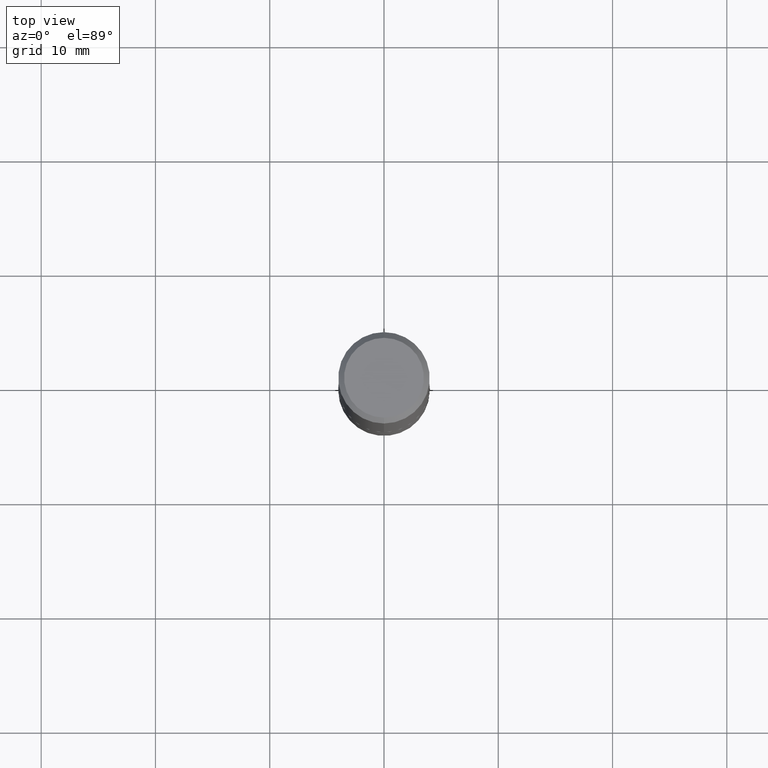
[diagram: clean part render]
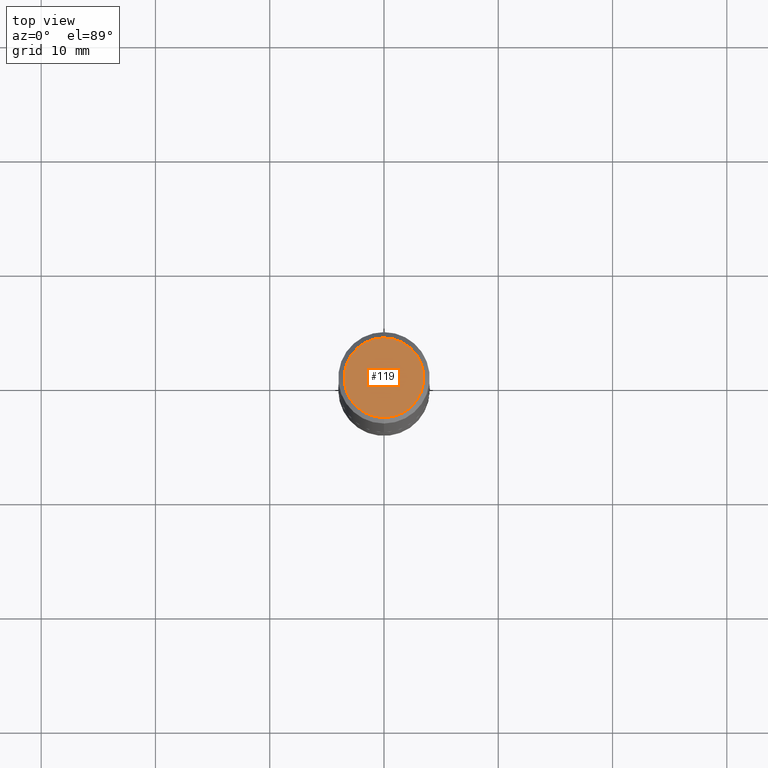
[diagram: same view with one face highlighted and labeled with its STEP entity id]
A machine part, top view. The second image highlights one B-rep face of the part: STEP entity #119.
In plain terms, the highlighted planar face has unit normal (0, -0, -1).
Its self-contained STEP definition (entity closure, byte-faithful):
#4 = CARTESIAN_POINT ( 'NONE',  ( 9.601573681818622643E-16, 0.1375000000000000944, -5.228303600724199869E-16 ) ) ;
#32 = PLANE ( 'NONE',  #73 ) ;
#39 = DIRECTION ( 'NONE',  ( -2.444792844423431679E-29, 3.492449354559260946E-15, 1.000000000000000000 ) ) ;
#40 = DIRECTION ( 'NONE',  ( -6.982962677686265922E-15, -1.000000000000000000, 3.492449354559260946E-15 ) ) ;
#73 = AXIS2_PLACEMENT_3D ( 'NONE', #4, #292, #386 ) ;
#75 = DIRECTION ( 'NONE',  ( -2.444792844423431679E-29, 3.492449354559260946E-15, 1.000000000000000000 ) ) ;
#77 = CARTESIAN_POINT ( 'NONE',  ( 2.083871686318839495E-45, -2.976864212634307973E-31, -8.523714764104235322E-17 ) ) ;
#97 = AXIS2_PLACEMENT_3D ( 'NONE', #240, #39, #316 ) ;
#100 = EDGE_CURVE ( 'NONE', #261, #314, #338, .T. ) ;
#107 = ORIENTED_EDGE ( 'NONE', *, *, #171, .T. ) ;
#119 = ADVANCED_FACE ( 'NONE', ( #418 ), #32, .F. ) ;
#154 = CARTESIAN_POINT ( 'NONE',  ( 1.029986994958724774E-15, 0.1375000000000000944, -5.654489338929410464E-16 ) ) ;
#171 = EDGE_CURVE ( 'NONE', #314, #261, #401, .T. ) ;
#240 = CARTESIAN_POINT ( 'NONE',  ( 2.083871686318839495E-45, -2.976864212634307973E-31, -8.523714764104235322E-17 ) ) ;
#260 = AXIS2_PLACEMENT_3D ( 'NONE', #77, #75, #40 ) ;
#261 = VERTEX_POINT ( 'NONE', #408 ) ;
#292 = DIRECTION ( 'NONE',  ( 2.444792844423431399E-29, -3.492449354559261341E-15, -1.000000000000000000 ) ) ;
#314 = VERTEX_POINT ( 'NONE', #154 ) ;
#316 = DIRECTION ( 'NONE',  ( -6.982962677686265922E-15, -1.000000000000000000, 3.492449354559260946E-15 ) ) ;
#319 = ORIENTED_EDGE ( 'NONE', *, *, #100, .T. ) ;
#338 = CIRCLE ( 'NONE', #97, 0.1375000000000000944 ) ;
#381 = EDGE_LOOP ( 'NONE', ( #107, #319 ) ) ;
#386 = DIRECTION ( 'NONE',  ( 6.982962677686265922E-15, 1.000000000000000000, -3.492449354559261341E-15 ) ) ;
#401 = CIRCLE ( 'NONE', #260, 0.1375000000000000944 ) ;
#408 = CARTESIAN_POINT ( 'NONE',  ( -1.011923454671301040E-15, -0.1375000000000000944, 3.949746386108564139E-16 ) ) ;
#418 = FACE_OUTER_BOUND ( 'NONE', #381, .T. ) ;